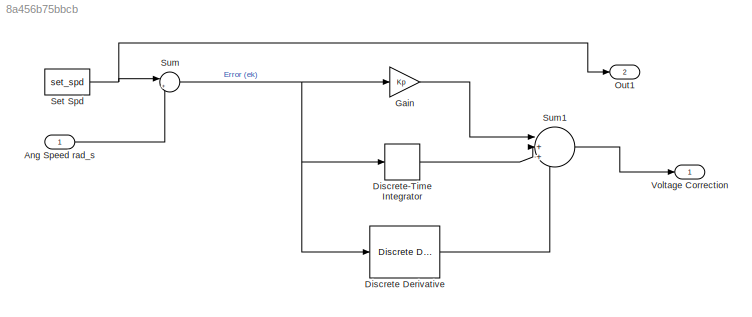
MODEL slx_8a456b75bbcb
KIND model
CONFIG AbsTol = auto
CONFIG EnableMultiTasking = off
CONFIG FixedStep = 0.01
CONFIG MaxStep = auto
CONFIG MinStep = auto
CONFIG RelTol = 1e-3
CONFIG SampleTimeConstraint = Unconstrained
CONFIG SolverName = FixedStepDiscrete
CONFIG StartTime = 0.0
CONFIG StopTime = 10.0
BLOCK [Inport] Ang Speed rad_s
BLOCK [Reference] Discrete Derivative  REF=simulink/Discrete/Discrete Derivative
  Ports = [1, 1]
  SourceBlock = simulink/Discrete/Discrete Derivative
  SourceProductBaseCode = SL
  SourceType = Discrete Derivative
BLOCK [DiscreteIntegrator] Discrete-Time Integrator
  ICPrevOutput = DiscIntNeverNeededParam
  ICPrevScaledInput = DiscIntNeverNeededParam
  InitialConditionSetting = Auto
  Ports = [1, 1]
  SampleTime = 0.01
  gainval = Ki
BLOCK [Gain] Gain
  Gain = Kp
BLOCK [Outport] Out1
  Port = 2
BLOCK [Constant] Set Spd
  Value = set_spd
BLOCK [Sum] Sum
  Inputs = |+-
  Ports = [2, 1]
BLOCK [Sum] Sum1
  Inputs = |+++
  Ports = [3, 1]
BLOCK [Outport] Voltage Correction
LINE Ang Speed rad_s:1 -> Sum:2
LINE Discrete Derivative:1 -> Sum1:3
LINE Discrete-Time Integrator:1 -> Sum1:2
LINE Gain:1 -> Sum1:1
NET Set Spd:1 -> Out1:1, Sum:1
LINE Sum1:1 -> Voltage Correction:1
NET Sum:1 -> Discrete Derivative:1, Discrete-Time Integrator:1, Gain:1
note: NET lines group one-source signal fan-out (src -> all destinations, sorted); 1:1 wires keep LINE
